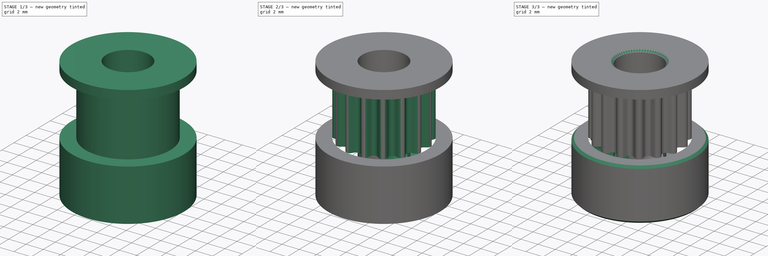
[diagram: build sequence overview — one tinted view per stage of 3, left to right]
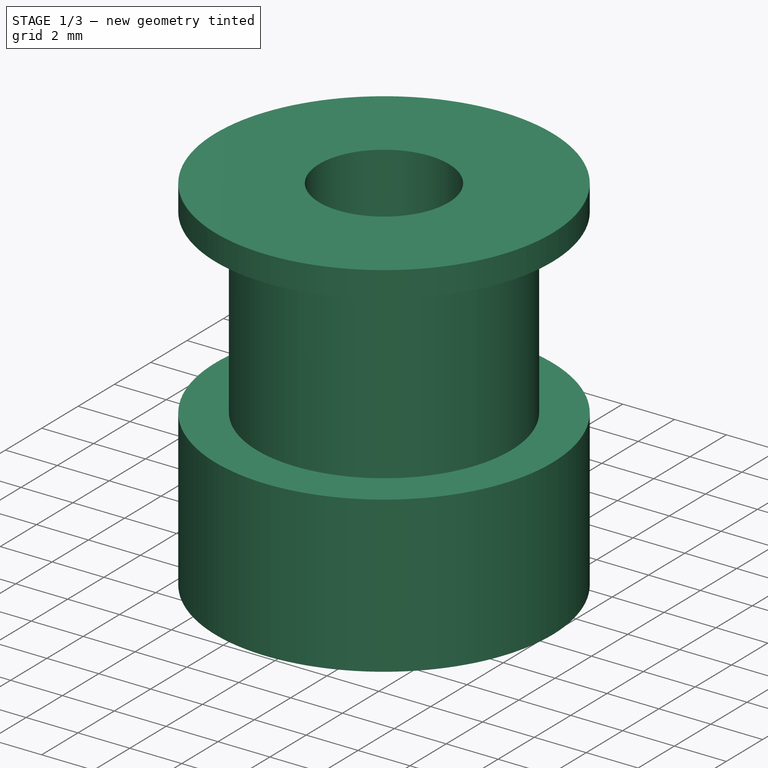
[diagram: stage 1 of 3 — iso view after this stage's code; geometry added in this stage tinted green]
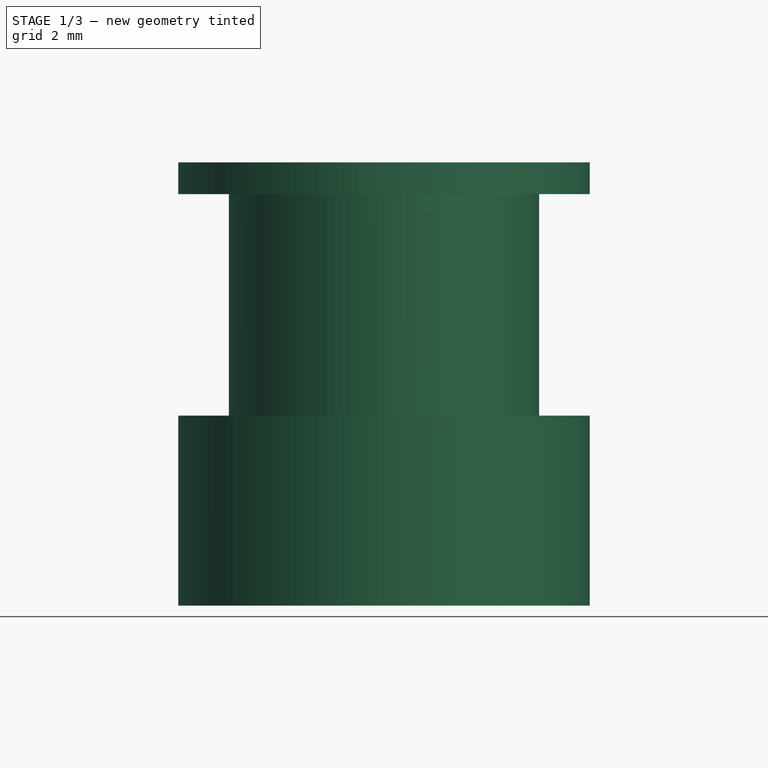
[diagram: stage 1 of 3 — front view after this stage's code; geometry added in this stage tinted green]
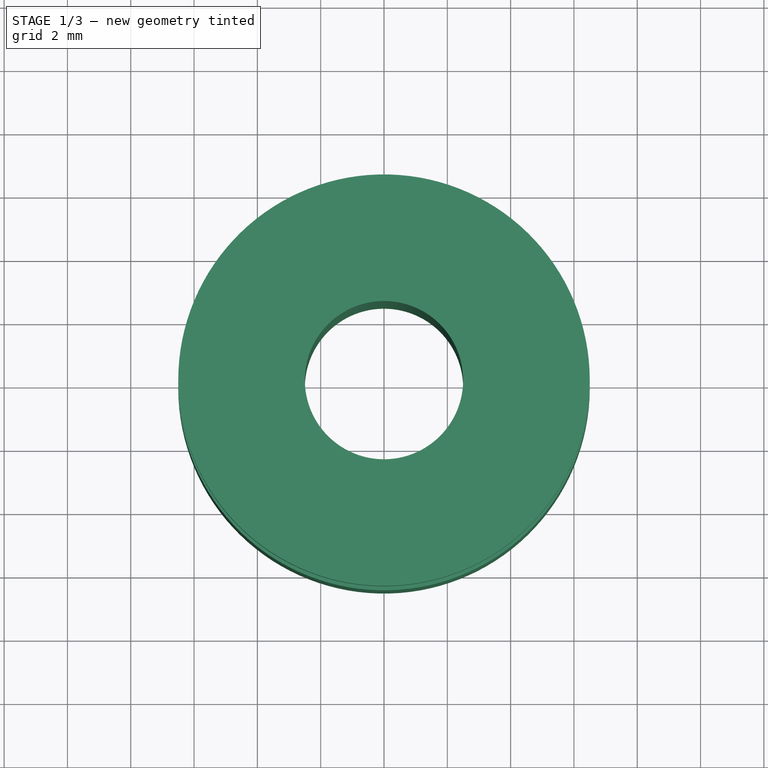
[diagram: stage 1 of 3 — top view after this stage's code; geometry added in this stage tinted green]
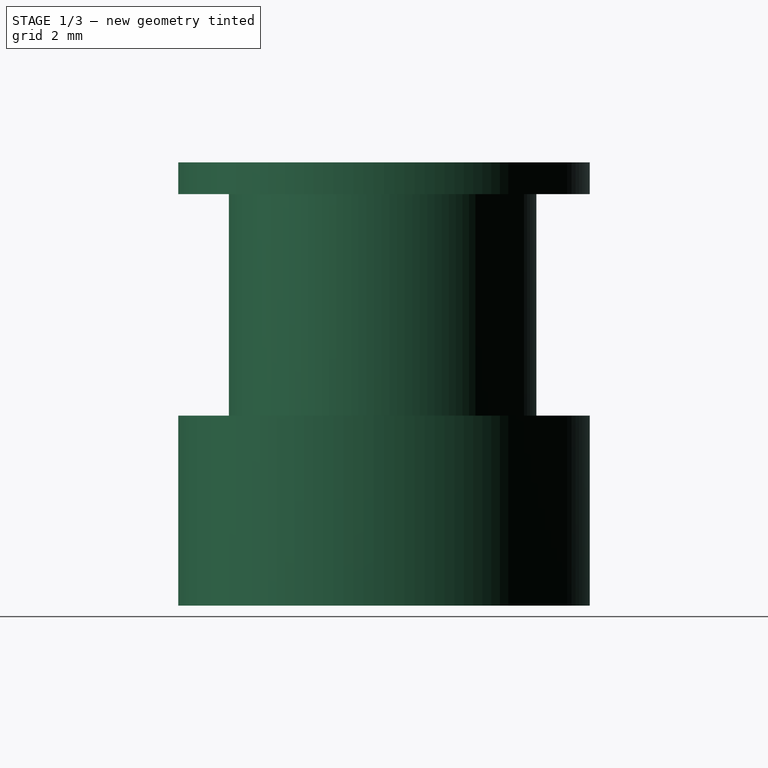
[diagram: stage 1 of 3 — right view after this stage's code; geometry added in this stage tinted green]
FCSTD DOCUMENT  (FreeCAD 0.18R4 (GitTag))
Label: Driver Pulley
License: All rights reserved
LicenseURL: http://en.wikipedia.org/wiki/All_rights_reserved
objects: Sketcher::SketchObject×4, PartDesign::Hole×2, PartDesign::Revolution×1, PartDesign::Pocket×1, PartDesign::PolarPattern×1, PartDesign::Chamfer×1, PartDesign::Body×1
note: 15 computed .brp shape members not serialized (recipe doc carries the construction recipe); baked Part::Feature solids carry a one-line shape summary decoded from their .brp

FEATURE [Sketcher::SketchObject] Sketch  label="Sketch Revolution"
  MapMode = 5
  Placement = pos=(0,0,0) rot=(1,0,0;1.5708rad)
  Support = -> [XZ_Plane]
  sketch-geometry (9):
    g0: LineSegment [constr] StartX=0 StartY=0 StartZ=0 EndX=0 EndY=14 EndZ=0
    g1: LineSegment StartX=-2.5 StartY=0 StartZ=0 EndX=-2.5 EndY=14 EndZ=0
    g2: LineSegment StartX=-2.5 StartY=14 StartZ=0 EndX=-6.5 EndY=14 EndZ=0
    g3: LineSegment StartX=-6.5 StartY=14 StartZ=0 EndX=-6.5 EndY=13 EndZ=0
    g4: LineSegment StartX=-6.5 StartY=13 StartZ=0 EndX=-4.9 EndY=13 EndZ=0
    g5: LineSegment StartX=-4.9 StartY=13 StartZ=0 EndX=-4.9 EndY=6 EndZ=0
    g6: LineSegment StartX=-4.9 StartY=6 StartZ=0 EndX=-6.5 EndY=6 EndZ=0
    g7: LineSegment StartX=-6.5 StartY=6 StartZ=0 EndX=-6.5 EndY=0 EndZ=0
    g8: LineSegment StartX=-6.5 StartY=0 StartZ=0 EndX=-2.5 EndY=0 EndZ=0
  constraints (27):
    c: Coincident(g0,g-1)
    c: PointOnObject(g0,g-2)
    c: PointOnObject(g1,g-1)
    c: Vertical(g1)
    c: Coincident(g1,g2)
    c: Horizontal(g2)
    c: Coincident(g2,g3)
    c: Vertical(g3)
    c: Coincident(g3,g4)
    c: Horizontal(g4)
    c: Coincident(g4,g5)
    c: Vertical(g5)
    c: Coincident(g5,g6)
    c: Horizontal(g6)
    c: Coincident(g6,g7)
    c: PointOnObject(g7,g-1)
    c: Vertical(g7)
    c: Coincident(g7,g8)
    c: Coincident(g8,g1)
    c: Vertical(g6,g3)
    c: Horizontal(g0,g1)
    c: Distance(g-1,g1) = 2.5
    c: Distance(g1) = 14
    c: Distance(g-1,g7) = 6.5
    c: Distance(g3) = 1
    c: Distance(g7) = 6
    c: Distance(g-1,g5) = 4.9
FEATURE [PartDesign::Revolution] Revolution
  Angle = 360
  Axis = (0,-1.035e-13,1)
  Base = (0,0,0)
  Placement = pos=(0,0,0) rot=(1,0,0;1.5708rad)
  Profile = -> Sketch
  ReferenceAxis = -> Sketch [V_Axis]
FEATURE [Sketcher::SketchObject] Sketch001  label="Sketch Tooth Cut"
  ExternalGeometry = -> [Revolution]
  MapMode = 5
  Placement = pos=(0,-6.18e-13,6) rot=(0,0,1;3.14159rad)
  Support = -> [Revolution]
  sketch-geometry (7):
    g0: ArcOfCircle CenterX=0 CenterY=-4.55 CenterZ=0 NormalX=0 NormalY=0 NormalZ=1 AngleXU=0 Radius=0.4 StartAngle=0.604216 EndAngle=2.53738
    g1: LineSegment StartX=-0.329179 StartY=-4.32275 StartZ=0 EndX=-0.548727 EndY=-4.64078 EndZ=0
    g2: LineSegment StartX=0.329179 StartY=-4.32275 StartZ=0 EndX=0.548727 EndY=-4.64078 EndZ=0
    g3: ArcOfCircle CenterX=-0.877906 CenterY=-4.41353 CenterZ=0 NormalX=0 NormalY=0 NormalZ=1 AngleXU=0 Radius=0.4 StartAngle=4.51604 EndAngle=5.67897
    g4: ArcOfCircle CenterX=0.877906 CenterY=-4.41353 CenterZ=0 NormalX=0 NormalY=0 NormalZ=1 AngleXU=0 Radius=0.4 StartAngle=3.74581 EndAngle=4.90874
    g5: ArcOfCircle CenterX=0 CenterY=0 CenterZ=0 NormalX=0 NormalY=0 NormalZ=1 AngleXU=0 Radius=4.9 StartAngle=4.51604 EndAngle=4.90874
    g6: LineSegment [constr] StartX=0 StartY=-4.15 StartZ=0 EndX=0 EndY=-4.9 EndZ=0
  constraints (19):
    c: PointOnObject(g0,g-2)
    c: PointOnObject(g3,g-3)
    c: Coincident(g5,g-1)
    c: Tangent(g5,g3) = -1.5708
    c: Tangent(g5,g4) = -1.5708
    c: Tangent(g3,g1) = 1.5708
    c: Tangent(g1,g0) = -1.5708
    c: Tangent(g4,g2) = -1.5708
    c: Tangent(g2,g0) = 1.5708
    c: Equal(g3,g4)
    c: Equal(g1,g2)
    c: Angle(g5) = 0.392699
    c: Equal(g3,g0)
    c: PointOnObject(g6,g0)
    c: PointOnObject(g6,g5)
    c: Vertical(g6)
    c: PointOnObject(g6,g-2)
    c: Distance(g6) = 0.75
    c: Radius(g0) = 0.4
FEATURE [PartDesign::Pocket] Pocket  label="Tooth Cut"
  BaseFeature = -> Revolution
  Length = 0
  Length2 = 100
  Placement = pos=(0,0,0) rot=(1,0,0;1.5708rad)
  Profile = -> Sketch001
  Reversed = true
  Type = 3
  UpToFace = -> Revolution [Face4]
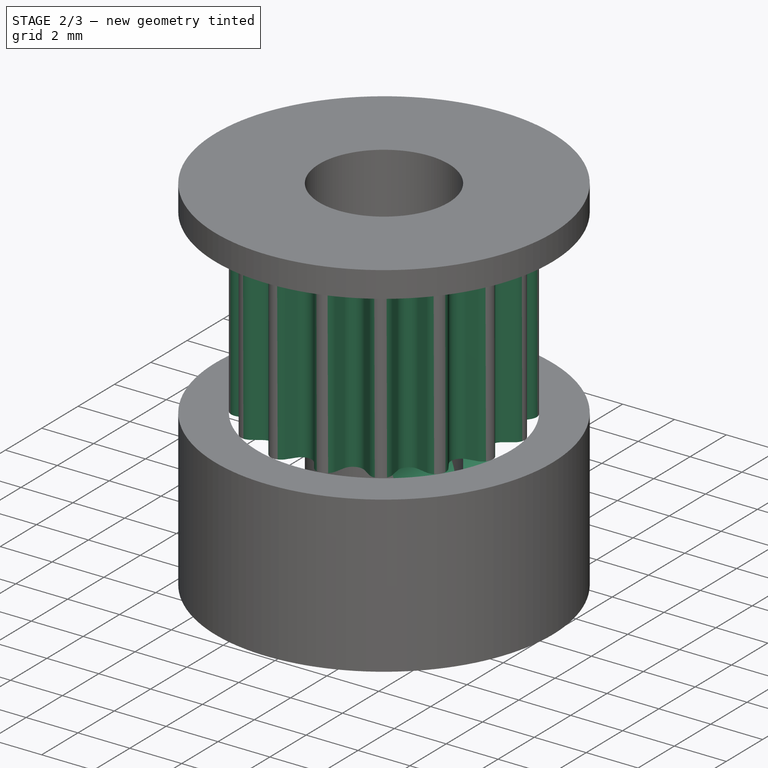
[diagram: stage 2 of 3 — iso view after this stage's code; geometry added in this stage tinted green]
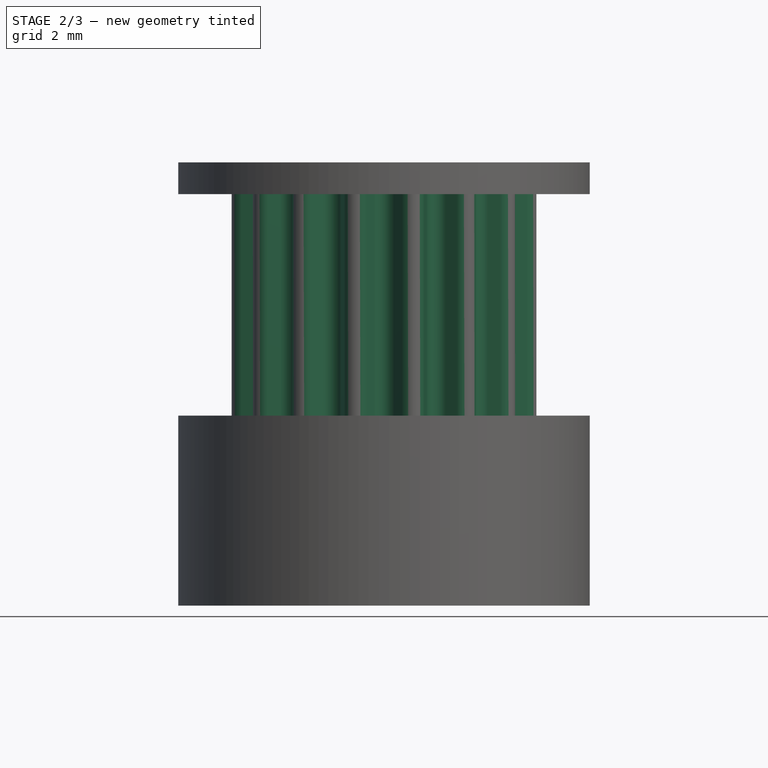
[diagram: stage 2 of 3 — front view after this stage's code; geometry added in this stage tinted green]
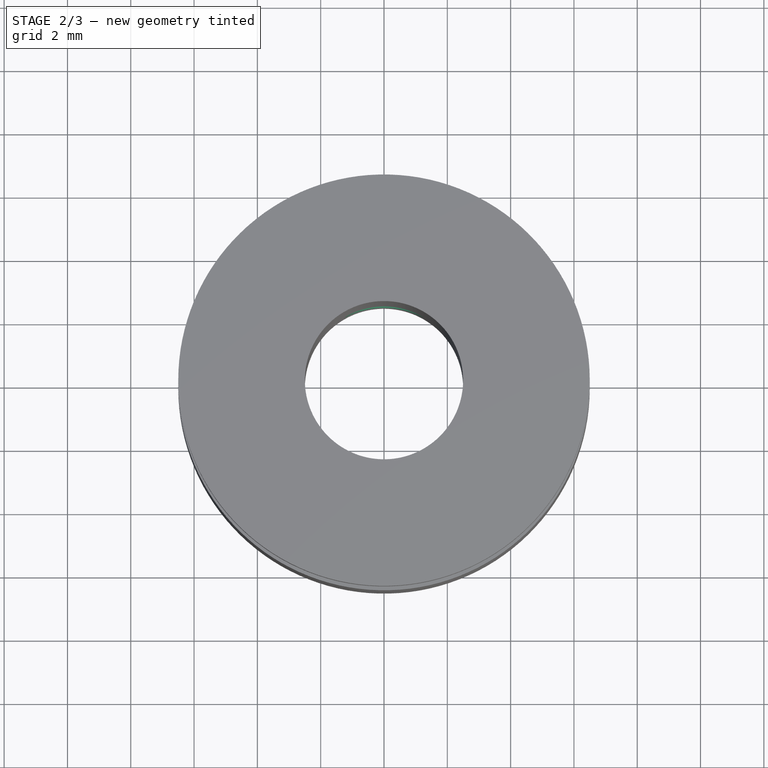
[diagram: stage 2 of 3 — top view after this stage's code; geometry added in this stage tinted green]
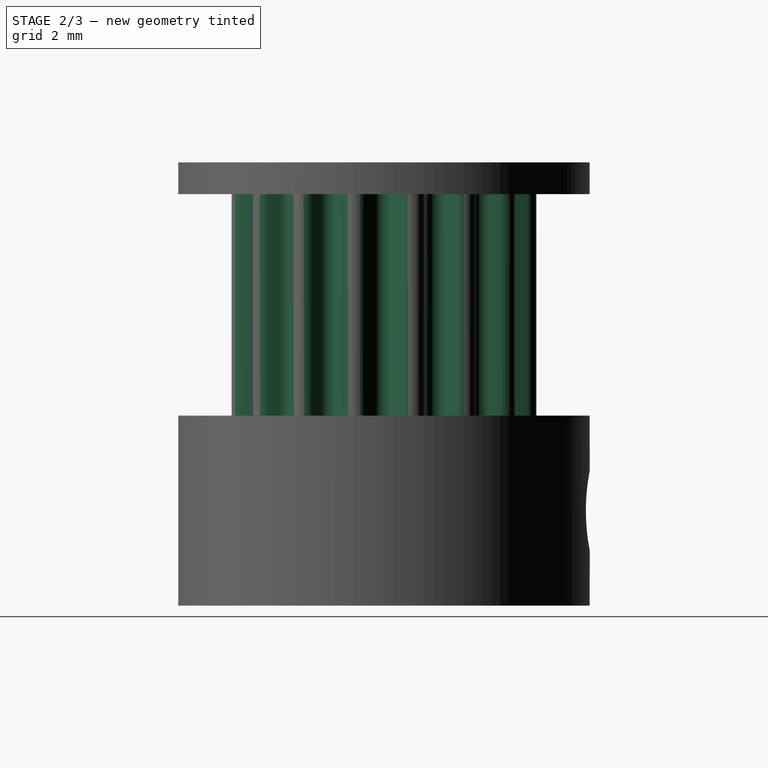
[diagram: stage 2 of 3 — right view after this stage's code; geometry added in this stage tinted green]
FEATURE [PartDesign::PolarPattern] PolarPattern  label="Teeth Pattern"
  Angle = 360
  Axis = -> Z_Axis
  BaseFeature = -> Pocket
  Occurrences = 16
  Originals = -> [Pocket]
  Placement = pos=(0,0,0) rot=(1,0,0;1.5708rad)
FEATURE [Sketcher::SketchObject] Sketch002  label="Sketch Hole 1"
  MapMode = 5
  Placement = pos=(0,0,0) rot=(1,0,0;1.5708rad)
  Support = -> [XZ_Plane]
  sketch-geometry (1):
    g0: Circle CenterX=0 CenterY=3 CenterZ=0 NormalX=0 NormalY=0 NormalZ=1 AngleXU=0 Radius=1.5
  constraints (3):
    c: PointOnObject(g0,g-2)
    c: Distance(g-1,g0) = 3
    c: Diameter(g0) = 3
FEATURE [PartDesign::Hole] Hole  label="Hole 1"
  BaseFeature = -> PolarPattern
  Depth = 25
  DepthType = 1
  Diameter = 2.5
  DrillPoint = 1
  DrillPointAngle = 118
  HoleCutCountersinkAngle = 90
  HoleCutDepth = 0
  HoleCutDiameter = 3
  HoleCutType = 0
  ModelActualThread = false
  Placement = pos=(0,0,0) rot=(1,0,0;1.5708rad)
  Profile = -> Sketch002
  Tapered = false
  TaperedAngle = 90
  ThreadAngle = 60
  ThreadClass = 0
  ThreadCutOffInner = 0.0541266
  ThreadCutOffOuter = 0.108253
  ThreadDirection = 1
  ThreadFit = 0
  ThreadPitch = 0.5
  ThreadSize = 3
  ThreadType = 1
  Threaded = true
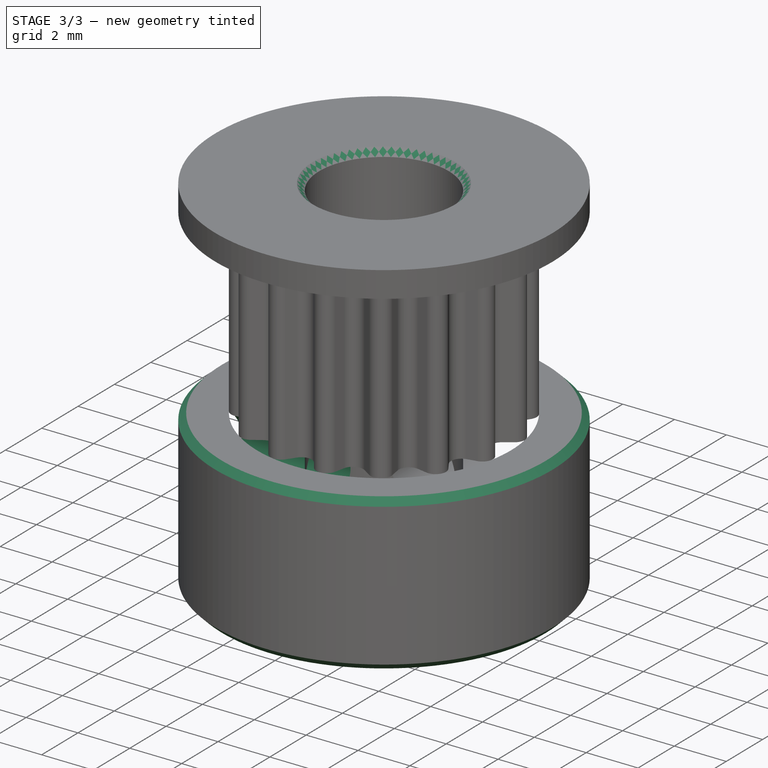
[diagram: stage 3 of 3 — iso view after this stage's code; geometry added in this stage tinted green]
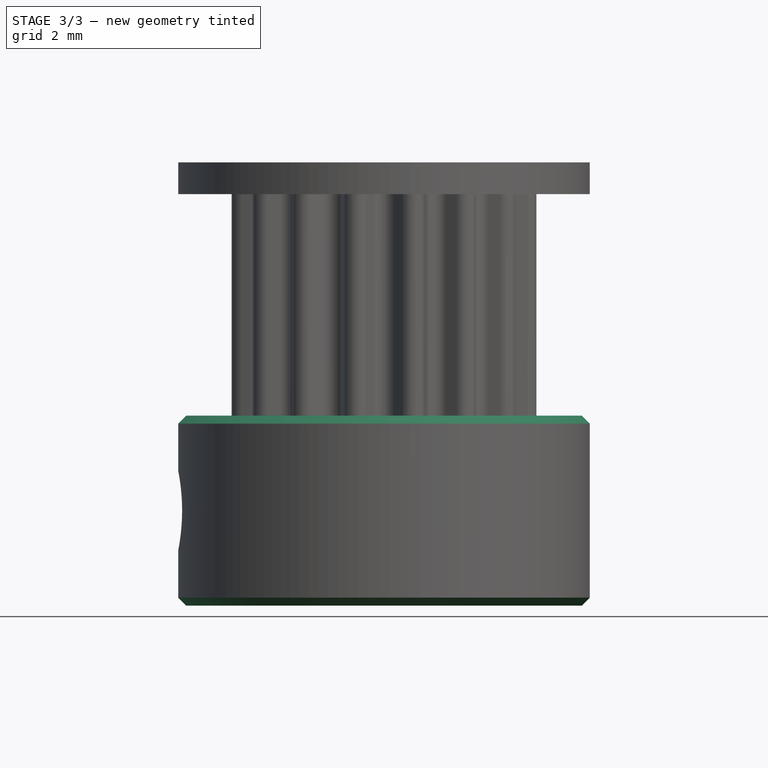
[diagram: stage 3 of 3 — front view after this stage's code; geometry added in this stage tinted green]
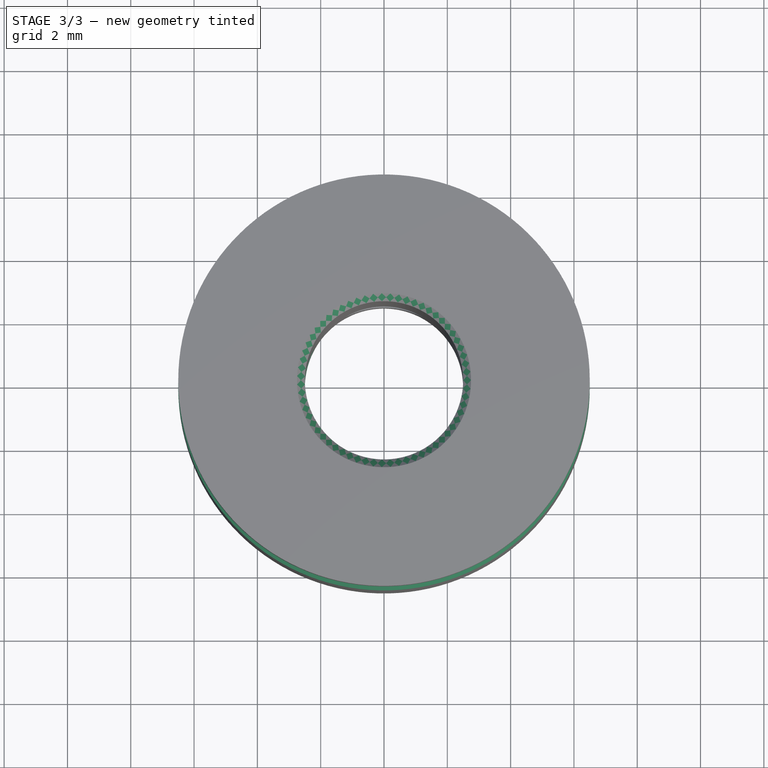
[diagram: stage 3 of 3 — top view after this stage's code; geometry added in this stage tinted green]
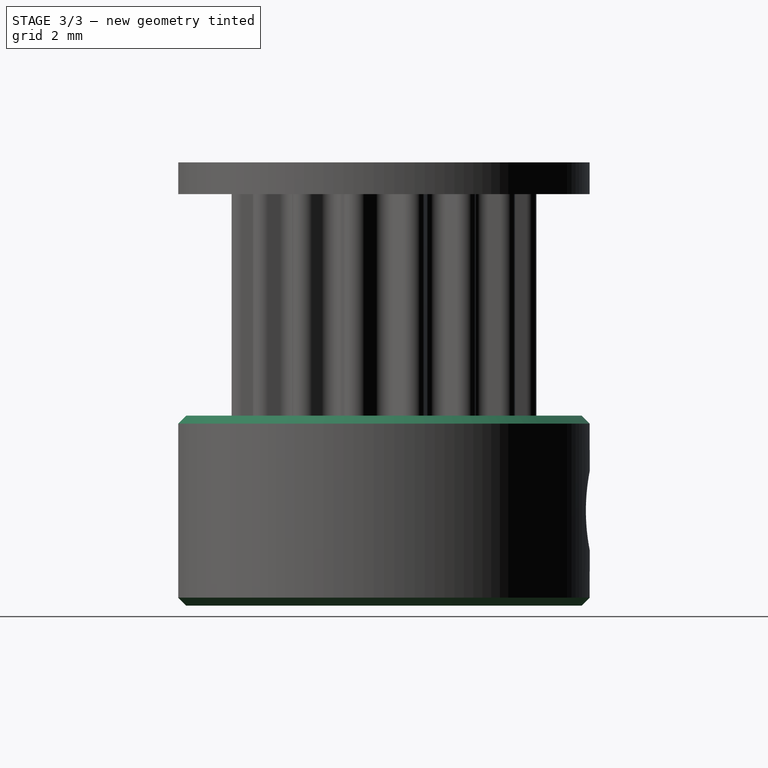
[diagram: stage 3 of 3 — right view after this stage's code; geometry added in this stage tinted green]
FEATURE [Sketcher::SketchObject] Sketch003  label="Sketch Hole 2"
  MapMode = 5
  Placement = pos=(0,0,0) rot=(0.57735,0.57735,0.57735;2.0944rad)
  Support = -> [YZ_Plane]
  sketch-geometry (1):
    g0: Circle CenterX=0 CenterY=3 CenterZ=0 NormalX=0 NormalY=0 NormalZ=1 AngleXU=0 Radius=1.5
  constraints (3):
    c: PointOnObject(g0,g-2)
    c: Distance(g-1,g0) = 3
    c: Diameter(g0) = 3
FEATURE [PartDesign::Hole] Hole001  label="Hole 2"
  BaseFeature = -> Hole
  Depth = 25
  DepthType = 0
  Diameter = 2.5
  DrillPoint = 1
  DrillPointAngle = 118
  HoleCutCountersinkAngle = 90
  HoleCutDepth = 0
  HoleCutDiameter = 3
  HoleCutType = 0
  ModelActualThread = false
  Placement = pos=(0,0,0) rot=(1,0,0;1.5708rad)
  Profile = -> Sketch003
  Tapered = false
  TaperedAngle = 90
  ThreadAngle = 60
  ThreadClass = 0
  ThreadCutOffInner = 0.0541266
  ThreadCutOffOuter = 0.108253
  ThreadDirection = 1
  ThreadFit = 0
  ThreadPitch = 0.5
  ThreadSize = 3
  ThreadType = 1
  Threaded = true
FEATURE [PartDesign::Chamfer] Chamfer
  Base = -> Hole001 [Edge17,Edge9,Edge1,Edge5]
  BaseFeature = -> Hole001
  Placement = pos=(0,0,0) rot=(1,0,0;1.5708rad)
  Size = 0.25
FEATURE [PartDesign::Body] Body  label="Driver Pulley GT2 16T"
  Group = -> [Sketch,Revolution,Sketch001,Pocket,PolarPattern,Sketch002,Hole,Sketch003,Hole001,Chamfer]
  Origin = -> Origin
  Tip = -> Chamfer
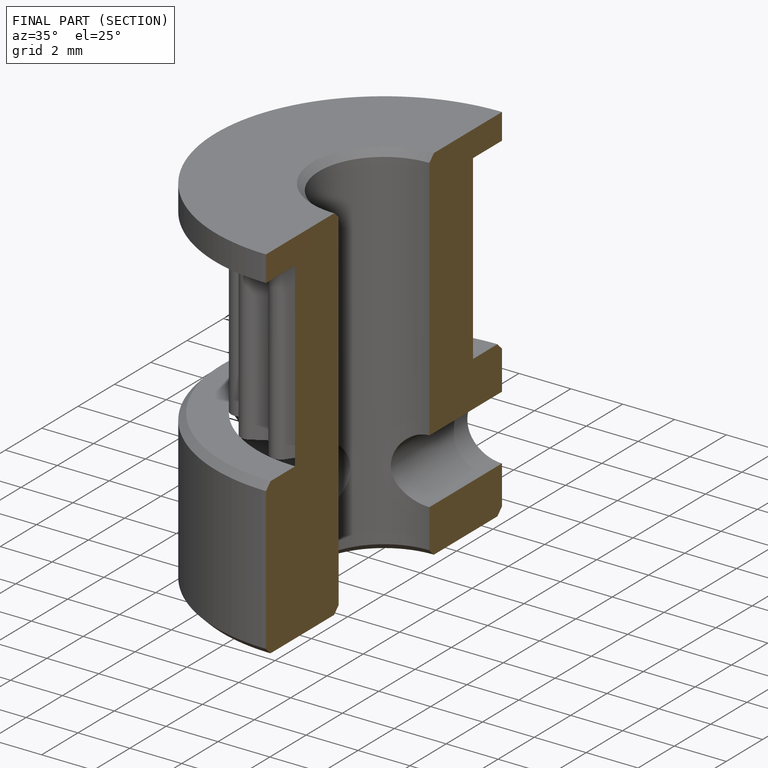
[diagram: finished part — half-section view (interior)]
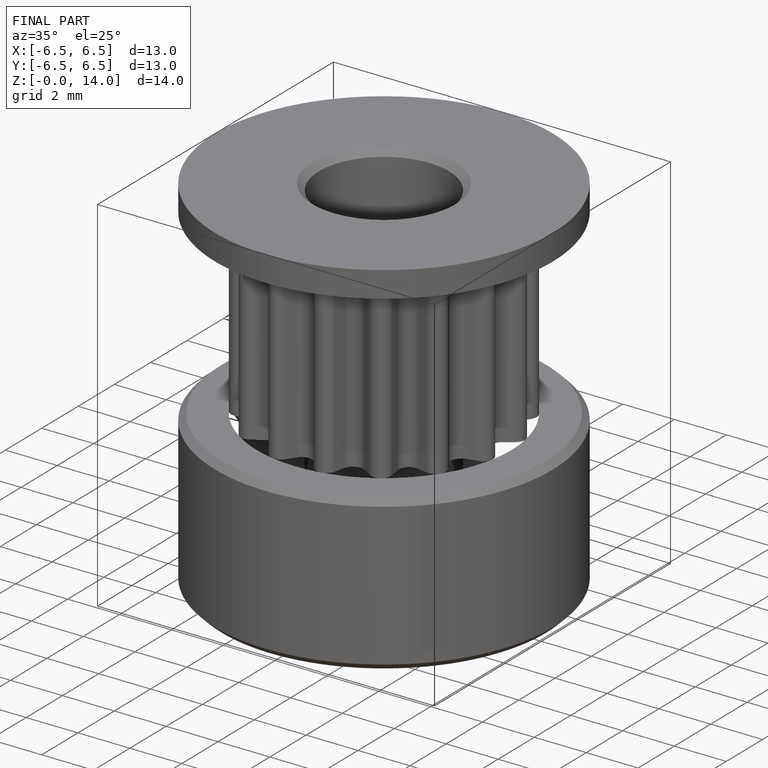
[diagram: finished part — iso view with bounding-box wireframe]
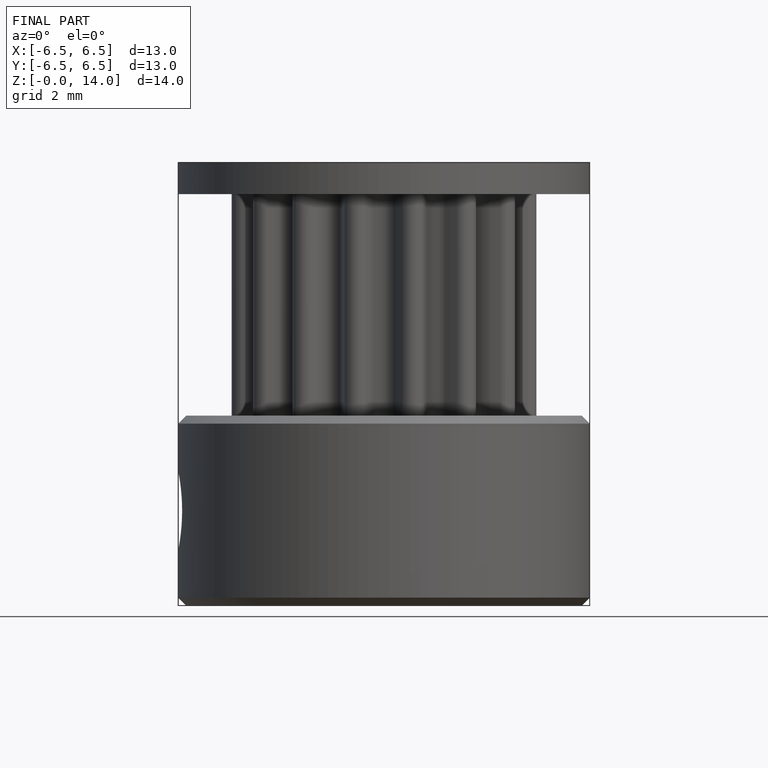
[diagram: finished part — front view with bounding-box wireframe]
